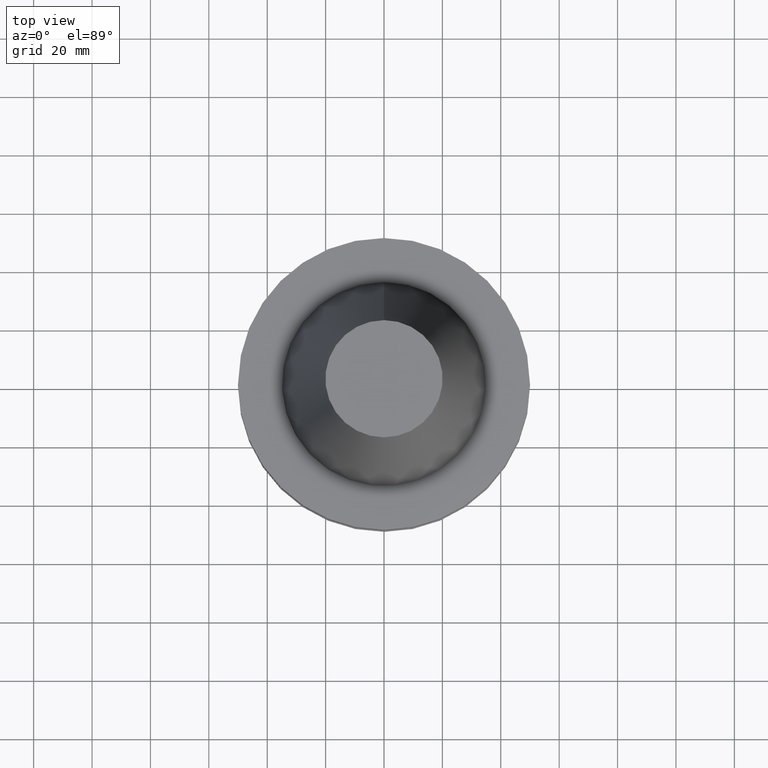
[diagram: clean part render]
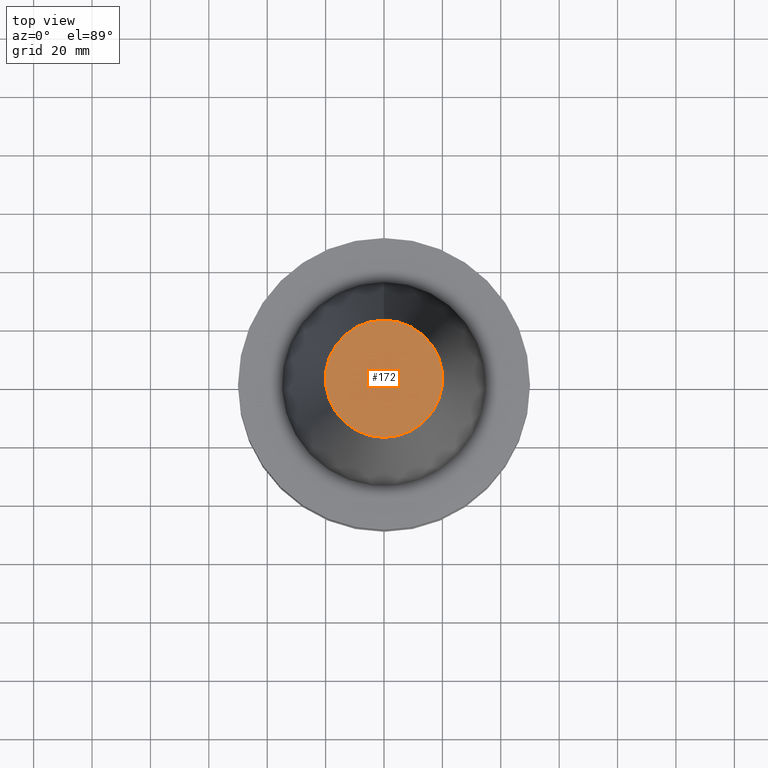
[diagram: same view with one face highlighted and labeled with its STEP entity id]
A machine part, top view. The second image highlights one B-rep face of the part: STEP entity #172.
In plain terms, the highlighted planar face has unit normal (-0, -0, 1).
Its self-contained STEP definition (entity closure, byte-faithful):
#85=EDGE_CURVE('Unnamed[1]',#217,#217,#218,.T.);
#172=ADVANCED_FACE('Unnamed[1]',(#349),#350,.T.);
#217=VERTEX_POINT('',#397);
#218=CIRCLE('',#398,20.0791666651884);
#349=FACE_OUTER_BOUND('',#561,.T.);
#350=PLANE('',#562);
#397=CARTESIAN_POINT('',(-6.23345220766003E-015,20.0791666651884,101.8));
#398=AXIS2_PLACEMENT_3D('',#598,#599,#600);
#561=EDGE_LOOP('',(#742));
#562=AXIS2_PLACEMENT_3D('',#743,#744,#745);
#598=CARTESIAN_POINT('',(-6.23345220766003E-015,1.30104902206953E-014,101.8));
#599=DIRECTION('',(-6.12323399573677E-017,1.40684069919115E-019,1.0));
#600=DIRECTION('',(-4.81853831597375E-033,1.0,-1.40684069919115E-019));
#742=ORIENTED_EDGE('',*,*,#85,.T.);
#743=CARTESIAN_POINT('',(-6.23345220766003E-015,10.0395833325942,101.8));
#744=DIRECTION('',(-6.12323399573677E-017,-1.22464679914735E-016,1.0));
#745=DIRECTION('',(-1.23259516440783E-032,1.0,1.22464679914735E-016));